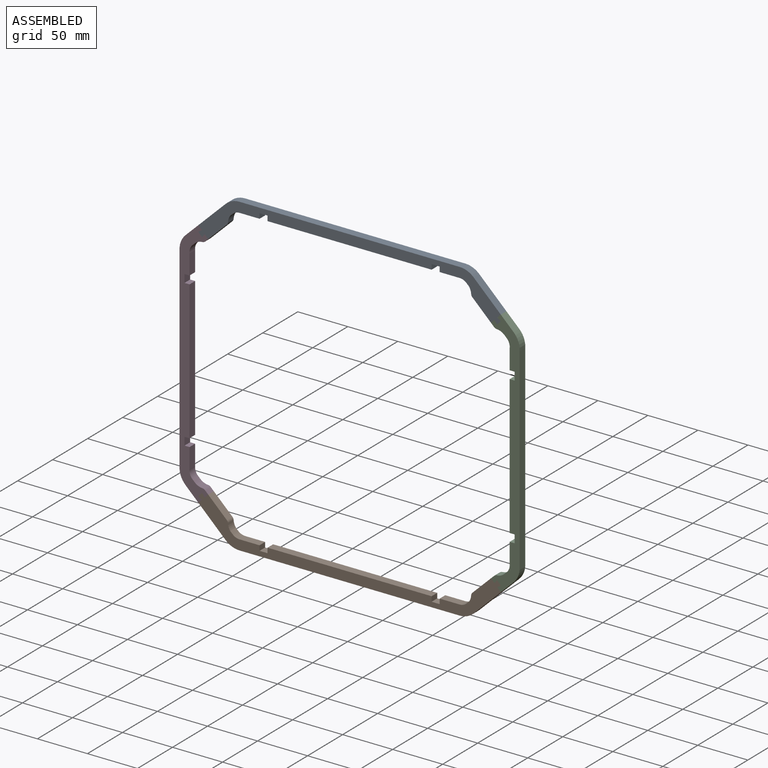
[diagram: assembled view]
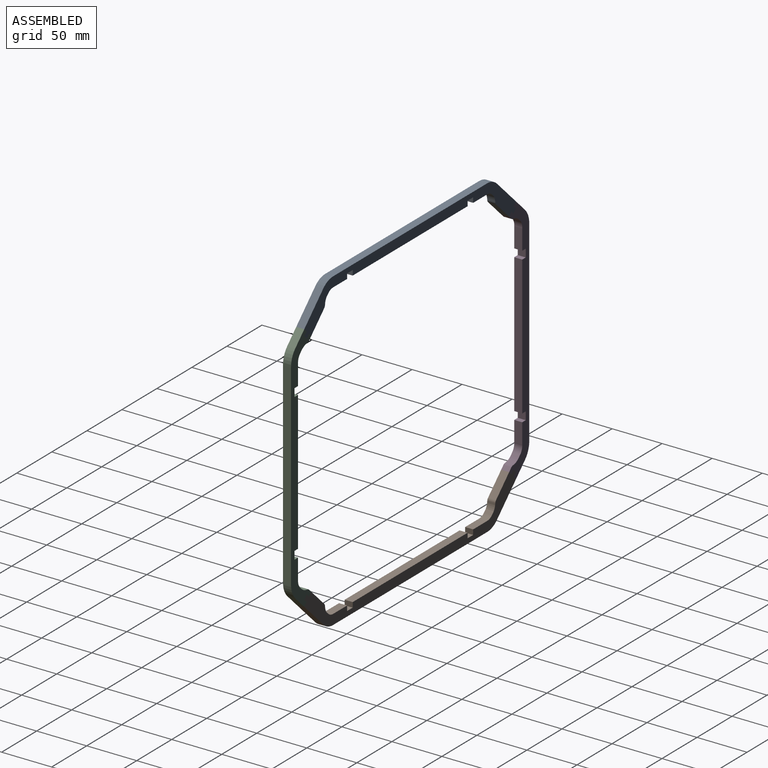
[diagram: assembled view, second angle]
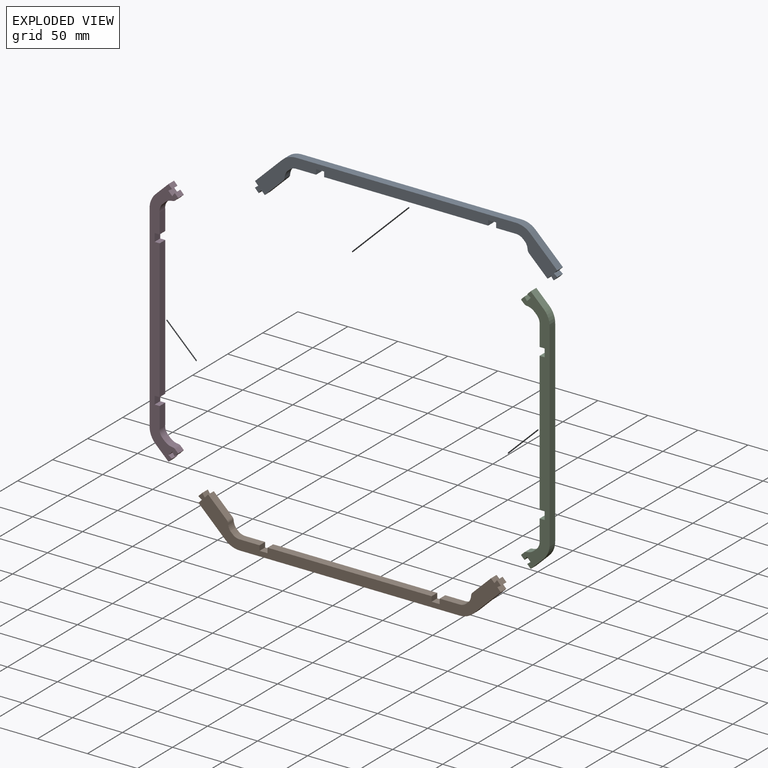
[diagram: exploded view]
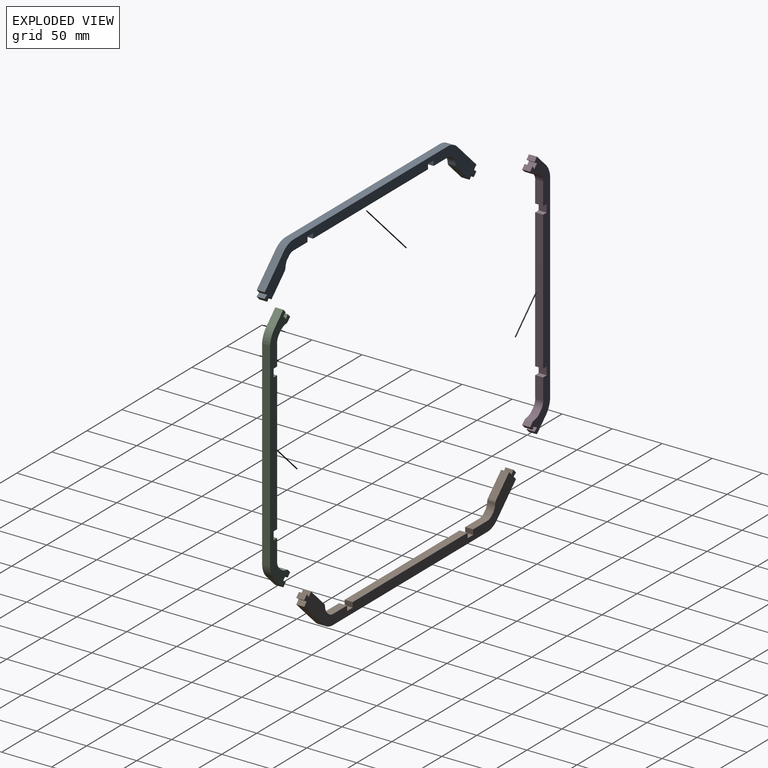
[diagram: exploded view, second angle]
ASSEMBLY  parts=4 mates=3
PART A: 36 faces, bbox 302.4x8x42.1 mm
  f0: plane 8x3.59mm, normal (-0.72,0,0.7), area 40mm2, adj f1,f33,f34,f35
  f1: plane 8x3.5mm, normal (0.81,0,0.59), area 34.6mm2, adj f0,f2,f34,f35
  f2: plane 8x3.94mm, normal (-0.72,0,0.7), area 44mm2, adj f1,f3,f34,f35
  f3: plane 8x3.57mm, normal (-0.56,0,-0.83), area 34.6mm2, adj f2,f4,f34,f35
  f4: plane 8x3.59mm, normal (-0.72,0,0.7), area 40mm2, adj f3,f5,f34,f35
  f5: plane 27.16x26.4mm, normal (-0.7,0,-0.72), area 303mm2, adj f4,f6,f34,f35
  f6: cylinder r=20mm len=13.94mm, axis (0,-1,0), area 123.4mm2, adj f5,f7,f34,f35
  f7: plane 220x8mm, normal (0,0,-1), area 1760mm2, adj f6,f8,f34,f35
  f8: cylinder r=20mm len=13.94mm, axis (0,-1,0), area 123.4mm2, adj f7,f9,f34,f35
  f9: plane 27.16x26.4mm, normal (0.7,0,-0.72), area 303mm2, adj f8,f10,f34,f35
  f10: plane 8x3.59mm, normal (0.72,0,0.7), area 40mm2, adj f9,f11,f34,f35
  f11: plane 8x3.57mm, normal (0.56,0,-0.83), area 34.6mm2, adj f10,f12,f34,f35
  f12: plane 8x3.94mm, normal (0.72,0,0.7), area 44mm2, adj f11,f13,f34,f35
  f13: plane 8x3.5mm, normal (-0.81,0,0.59), area 34.6mm2, adj f12,f14,f34,f35
  f14: plane 8x3.59mm, normal (0.72,0,0.7), area 40mm2, adj f13,f15,f34,f35
  f15: plane 18.64x18.12mm, normal (-0.7,0,0.72), area 208mm2, adj f14,f16,f34,f35
  f16: cylinder r=3.99mm len=8mm, axis (0,-1,0), area 23.7mm2, adj f15,f17,f34,f35
  f17: cylinder r=12.13mm len=8mm, axis (0,-1,0), area 52.3mm2, adj f16,f18,f34,f35
  f18: plane 8x2.15mm, normal (-0.7,0,0.72), area 24mm2, adj f17,f19,f34,f35
  f19: cylinder r=10mm len=8mm, axis (0,-1,0), area 65.2mm2, adj f18,f20,f34,f35
  f20: plane 20x8mm, normal (0,0,1), area 160mm2, adj f19,f21,f34,f35
  f21: plane 8x5mm, normal (-1,0,0), area 40mm2, adj f20,f22,f34,f35
  f22: plane 8x8mm, normal (0,0,1), area 64mm2, adj f21,f23,f34,f35
  f23: plane 8x5mm, normal (1,0,0), area 40mm2, adj f22,f24,f34,f35
  f24: plane 164x8mm, normal (0,0,1), area 1312mm2, adj f23,f25,f34,f35
  f25: plane 8x5mm, normal (-1,0,0), area 40mm2, adj f24,f26,f34,f35
  f26: plane 8x8mm, normal (0,0,1), area 64mm2, adj f25,f27,f34,f35
  f27: plane 8x5mm, normal (1,0,0), area 40mm2, adj f26,f28,f34,f35
  f28: plane 20x8mm, normal (0,0,1), area 160mm2, adj f27,f29,f34,f35
  f29: cylinder r=10mm len=8mm, axis (0,-1,0), area 65.2mm2, adj f28,f30,f34,f35
  f30: plane 8x2.15mm, normal (0.7,0,0.72), area 24mm2, adj f29,f31,f34,f35
  f31: cylinder r=12.13mm len=8mm, axis (0,-1,0), area 52.3mm2, adj f30,f32,f34,f35
  f32: cylinder r=3.99mm len=8mm, axis (0,-1,0), area 23.7mm2, adj f31,f33,f34,f35
  f33: plane 18.64x18.12mm, normal (0.7,0,0.72), area 208mm2, adj f0,f32,f34,f35
  f34: plane 302.38x42.1mm, normal (0,1,0), area 3390.5mm2, adj f0,f1,f2,f3,f4,f5,f6,f7
  f35: plane 302.38x42.1mm, normal (0,-1,0), area 3390.5mm2, adj f0,f1,f2,f3,f4,f5,f6,f7
PART B: same geometry as A
PART C: 36 faces, bbox 28.7x8x250.9 mm
  f0: plane 8x3.59mm, normal (0.72,0,-0.7), area 40mm2, adj f1,f33,f34,f35
  f1: plane 8x3.12mm, normal (0.7,0,0.72), area 34.8mm2, adj f0,f2,f34,f35
  f2: cylinder r=3.99mm len=8mm, axis (0,-1,0), area 23mm2, adj f1,f3,f34,f35
  f3: cylinder r=12.13mm len=8mm, axis (0,-1,0), area 69.9mm2, adj f2,f4,f34,f35
  f4: plane 8x2.15mm, normal (0.7,0,0.72), area 24mm2, adj f3,f5,f34,f35
  f5: cylinder r=10mm len=8.23mm, axis (0,-1,0), area 72.5mm2, adj f4,f6,f34,f35
  f6: plane 20x8mm, normal (1,0,0), area 160mm2, adj f5,f7,f34,f35
  f7: plane 8x5mm, normal (0,0,1), area 40mm2, adj f6,f8,f34,f35
  f8: plane 8x8mm, normal (1,0,0), area 64mm2, adj f7,f9,f34,f35
  f9: plane 8x5mm, normal (0,0,-1), area 40mm2, adj f8,f10,f34,f35
  f10: plane 139x8mm, normal (1,0,0), area 1112mm2, adj f9,f11,f34,f35
  f11: plane 8x5mm, normal (0,0,1), area 40mm2, adj f10,f12,f34,f35
  f12: plane 8x8mm, normal (1,0,0), area 64mm2, adj f11,f13,f34,f35
  f13: plane 8x5mm, normal (0,0,-1), area 40mm2, adj f12,f14,f34,f35
  f14: plane 20x8mm, normal (1,0,0), area 160mm2, adj f13,f15,f34,f35
  f15: cylinder r=10mm len=8.23mm, axis (0,-1,0), area 72.5mm2, adj f14,f16,f34,f35
  f16: plane 8x2.15mm, normal (0.7,0,-0.72), area 24mm2, adj f15,f17,f34,f35
  f17: cylinder r=12.13mm len=8mm, axis (0,-1,0), area 69.9mm2, adj f16,f18,f34,f35
  f18: cylinder r=3.99mm len=8mm, axis (0,-1,0), area 23mm2, adj f17,f19,f34,f35
  f19: plane 8x3.12mm, normal (0.7,0,-0.72), area 34.8mm2, adj f18,f20,f34,f35
  f20: plane 8x3.59mm, normal (0.72,0,0.7), area 40mm2, adj f19,f21,f34,f35
  f21: plane 8x3.5mm, normal (-0.81,0,0.59), area 34.6mm2, adj f20,f22,f34,f35
  f22: plane 8x3.94mm, normal (0.72,0,0.7), area 44mm2, adj f21,f23,f34,f35
  f23: plane 8x3.57mm, normal (0.56,0,-0.83), area 34.6mm2, adj f22,f24,f34,f35
  f24: plane 8x3.59mm, normal (0.72,0,0.7), area 40mm2, adj f23,f25,f34,f35
  f25: plane 12.87x12.51mm, normal (-0.7,0,0.72), area 143.6mm2, adj f24,f26,f34,f35
  f26: cylinder r=20mm len=15.43mm, axis (0,-1,0), area 136.6mm2, adj f25,f27,f34,f35
  f27: plane 195x8mm, normal (-1,0,0), area 1560mm2, adj f26,f28,f34,f35
  f28: cylinder r=20mm len=15.43mm, axis (0,-1,0), area 136.6mm2, adj f27,f29,f34,f35
  f29: plane 12.87x12.51mm, normal (-0.7,0,-0.72), area 143.6mm2, adj f28,f30,f34,f35
  f30: plane 8x3.59mm, normal (0.72,0,-0.7), area 40mm2, adj f29,f31,f34,f35
  f31: plane 8x3.57mm, normal (0.56,0,0.83), area 34.6mm2, adj f30,f32,f34,f35
  f32: plane 8x3.94mm, normal (0.72,0,-0.7), area 44mm2, adj f31,f33,f34,f35
  f33: plane 8x3.5mm, normal (-0.81,0,-0.59), area 34.6mm2, adj f0,f32,f34,f35
  f34: plane 250.87x28.69mm, normal (0,1,0), area 2519.2mm2, adj f0,f1,f2,f3,f4,f5,f6,f7
  f35: plane 250.87x28.69mm, normal (0,-1,0), area 2519.2mm2, adj f0,f1,f2,f3,f4,f5,f6,f7
PART D: same geometry as C
PLACE A rot(axis=(-1,0,0),180deg) t=(-65.19,89.63,34.83)mm
PLACE B t=(-65.19,81.63,-150.17)mm
PLACE C rot(axis=(0,0,-1),180deg) t=(154.81,89.63,-150.17)mm
PLACE D t=(-65.19,81.63,-150.17)mm
MATE fastened D.f32 <-> B.f2  axis (0.72,0,-0.7) through (-104.47,85.63,-175.12)mm
MATE fastened D.f22 <-> A.f2  axis (0.72,0,0.7) through (-104.47,85.63,59.79)mm
MATE fastened B.f12 <-> C.f32  axis (0.72,0,0.7) through (194.08,85.63,-175.12)mm
